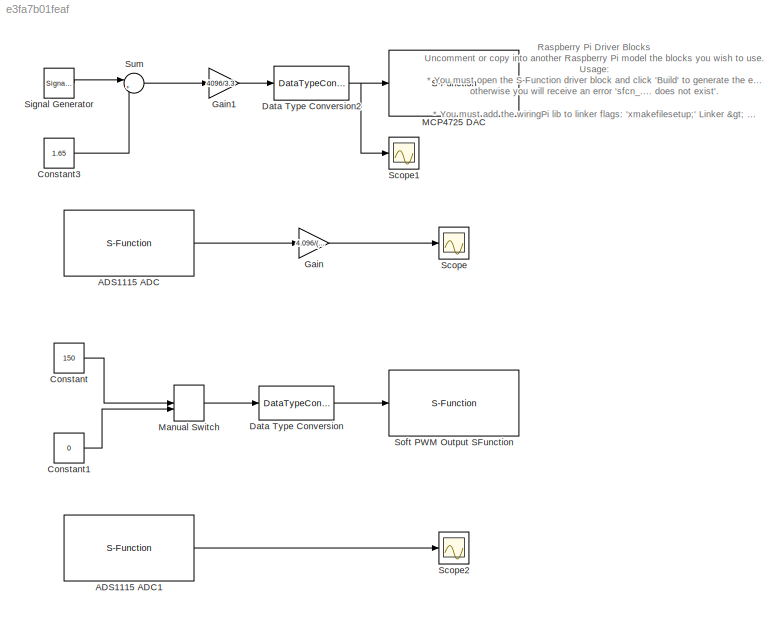
MODEL slx_e3fa7b01feaf
KIND model
CONFIG AbsTol = auto
CONFIG EnableMultiTasking = off
CONFIG FixedStep = auto
CONFIG MaxStep = auto
CONFIG MinStep = auto
CONFIG PreLoadFcn = Ts = 1e-3
CONFIG RelTol = 1e-3
CONFIG SampleTimeConstraint = Unconstrained
CONFIG Solver = ode45
CONFIG SolverMode = Auto
CONFIG SolverName = ode45
CONFIG StartTime = 0.0
CONFIG StopTime = 10.0
BLOCK [S-Function] ADS1115 ADC
  Commented = on
  CopyFcn = set_param(gcbh,'LinkStatus','none')
  EnableBusSupport = off
  FunctionName = sfcn_ADS1115_Out
  InitFcn = try, set_param(gcb,'FunctionName','sfcn_ADS1115_Out'), end
  OpenFcn = sfunctionwizard(gcbh)
  Parameters = uint8(0)
  Ports = [0, 1]
  PreSaveFcn = try, set_param(gcb,'FunctionName','sfcn_ADS1115_Out'), end
  SFcnIsStateOwnerBlock = off
  SFunctionDeploymentMode = off
  SFunctionModules = sfcn_ADS1115_Out_wrapper
BLOCK [S-Function] ADS1115 ADC1
  Commented = on
  CopyFcn = set_param(gcbh,'LinkStatus','none')
  EnableBusSupport = off
  FunctionName = sfcn_MCP3008_Out
  InitFcn = try, set_param(gcb,'FunctionName','sfcn_MCP3008_Out'), end
  OpenFcn = sfunctionwizard(gcbh)
  Parameters = uint8(0)
  Ports = [0, 1]
  PreSaveFcn = try, set_param(gcb,'FunctionName','sfcn_MCP3008_Out'), end
  SFcnIsStateOwnerBlock = off
  SFunctionDeploymentMode = off
  SFunctionModules = sfcn_MCP3008_Out_wrapper
BLOCK [Constant] Constant
  Value = 150
BLOCK [Constant] Constant1
  Value = 0
BLOCK [Constant] Constant3
  Commented = on
  SampleTime = Ts
  Value = 1.65
BLOCK [DataTypeConversion] Data Type Conversion
  OutDataTypeStr = uint8
  RndMeth = Floor
  SaturateOnIntegerOverflow = off
BLOCK [DataTypeConversion] Data Type Conversion2
  Commented = on
  RndMeth = Floor
  SaturateOnIntegerOverflow = off
BLOCK [Gain] Gain
  Commented = on
  Gain = 4.096/(2^16/2)
  OutDataTypeStr = Inherit: Inherit via internal rule
  ParamDataTypeStr = Inherit: Inherit via internal rule
  SampleTime = Ts
  SaturateOnIntegerOverflow = off
BLOCK [Gain] Gain1
  Commented = on
  Gain = 4096/3.3
  OutDataTypeStr = Inherit: Inherit via internal rule
  ParamDataTypeStr = Inherit: Inherit via internal rule
  SampleTime = Ts
  SaturateOnIntegerOverflow = off
BLOCK [S-Function] MCP4725 DAC
  Commented = on
  CopyFcn = set_param(gcbh,'LinkStatus','none')
  EnableBusSupport = off
  FunctionName = sfcn_DAC_Out
  InitFcn = try, set_param(gcb,'FunctionName','sfcn_DAC_Out'), end
  OpenFcn = sfunctionwizard(gcbh)
  Parameters = uint8(0)
  Ports = [1]
  PreSaveFcn = try, set_param(gcb,'FunctionName','sfcn_DAC_Out'), end
  SFcnIsStateOwnerBlock = off
  SFunctionDeploymentMode = off
  SFunctionModules = sfcn_DAC_Out_wrapper
BLOCK [ManualSwitch] Manual Switch
BLOCK [Scope] Scope
  Commented = on
  Floating = off
  NumInputPorts = 1
  Ports = [1]
  ScopeSpecificationString = C++SS(StrPVP('Location','[962, 243, 1733, 792]'),StrPVP('Open','off'),StrPVP('ZoomMode','yonly'),MxPVP('AxesTitles',54,'struct(''axes1'',''%<SignalLabel>'')'),MxPVP('ScopeGraphics',57,'struct(''FigureColor'',''[0.5 0.5 0.5]'',''AxesColor'',''[0 0 0]'',''AxesTickColor'',''[1 1 1]'',''LineColors'',''[1 1 0;1 0 1;0 1 1;1 0 0;0 1 0;0 0 1]'',''LineStyles'',''-|-|-|-|-|-'',''LineWidths'',''[0.5 0.5 0.5 ...<+311ch>
BLOCK [Scope] Scope1
  Commented = on
  Floating = off
  NumInputPorts = 1
  Ports = [1]
  ScopeSpecificationString = C++SS(StrPVP('Location','[352, 584, 1123, 1133]'),StrPVP('Open','off'),StrPVP('ZoomMode','yonly'),MxPVP('AxesTitles',54,'struct(''axes1'',''%<SignalLabel>'')'),MxPVP('ScopeGraphics',57,'struct(''FigureColor'',''[0.5 0.5 0.5]'',''AxesColor'',''[0 0 0]'',''AxesTickColor'',''[1 1 1]'',''LineColors'',''[1 1 0;1 0 1;0 1 1;1 0 0;0 1 0;0 0 1]'',''LineStyles'',''-|-|-|-|-|-'',''LineWidths'',''[0.5 0.5 0.5...<+346ch>
BLOCK [Scope] Scope2
  Commented = on
  Floating = off
  NumInputPorts = 1
  Ports = [1]
  ScopeSpecificationString = C++SS(StrPVP('Location','[962, 243, 1733, 792]'),StrPVP('Open','off'),StrPVP('ZoomMode','yonly'),MxPVP('AxesTitles',54,'struct(''axes1'',''%<SignalLabel>'')'),MxPVP('ScopeGraphics',57,'struct(''FigureColor'',''[0.5 0.5 0.5]'',''AxesColor'',''[0 0 0]'',''AxesTickColor'',''[1 1 1]'',''LineColors'',''[1 1 0;1 0 1;0 1 1;1 0 0;0 1 0;0 0 1]'',''LineStyles'',''-|-|-|-|-|-'',''LineWidths'',''[0.5 0.5 0.5 ...<+342ch>
BLOCK [SignalGenerator] Signal Generator
  Amplitude = 1.65
  Commented = on
  Frequency = 5
  Ports = [0, 1]
BLOCK [S-Function] Soft PWM Output SFunction
  CopyFcn = set_param(gcbh,'LinkStatus','none')
  EnableBusSupport = off
  FunctionName = sfcn_PWM_Out
  InitFcn = try, set_param(gcb,'FunctionName','sfcn_PWM_Out'), end
  OpenFcn = sfunctionwizard(gcbh)
  Parameters = uint8(0)
  Ports = [1]
  PreSaveFcn = try, set_param(gcb,'FunctionName','sfcn_PWM_Out'), end
  SFcnIsStateOwnerBlock = off
  SFunctionDeploymentMode = off
  SFunctionModules = sfcn_PWM_Out_wrapper
BLOCK [Sum] Sum
  Commented = on
  IconShape = round
  InputSameDT = off
  Inputs = |++
  OutDataTypeStr = Inherit: Inherit via internal rule
  Ports = [2, 1]
  SaturateOnIntegerOverflow = off
ANNOTATION (root): Raspberry Pi Driver Blocks Uncomment or copy into another Raspberry Pi model the blocks you wish to use. Usage: * You must open the S-Function driver block and click 'Build' to generate the embedded coder files otherwise you will receive an error 'sfcn_.... does not exist'. * You must add the wiringPi lib to linker flags: 'xmakefilesetup;' Linker > Arguments > add '-lwiringPi' to the end: http://w...<+955ch>
LINE ADS1115 ADC1:1 -> Scope2:1
LINE ADS1115 ADC:1 -> Gain:1
LINE Constant1:1 -> Manual Switch:2
LINE Constant3:1 -> Sum:2
LINE Constant:1 -> Manual Switch:1
NET Data Type Conversion2:1 -> MCP4725 DAC:1, Scope1:1
LINE Data Type Conversion:1 -> Soft PWM Output SFunction:1
LINE Gain1:1 -> Data Type Conversion2:1
LINE Gain:1 -> Scope:1
LINE Manual Switch:1 -> Data Type Conversion:1
LINE Signal Generator:1 -> Sum:1
LINE Sum:1 -> Gain1:1
note: NET lines group one-source signal fan-out (src -> all destinations, sorted); 1:1 wires keep LINE
